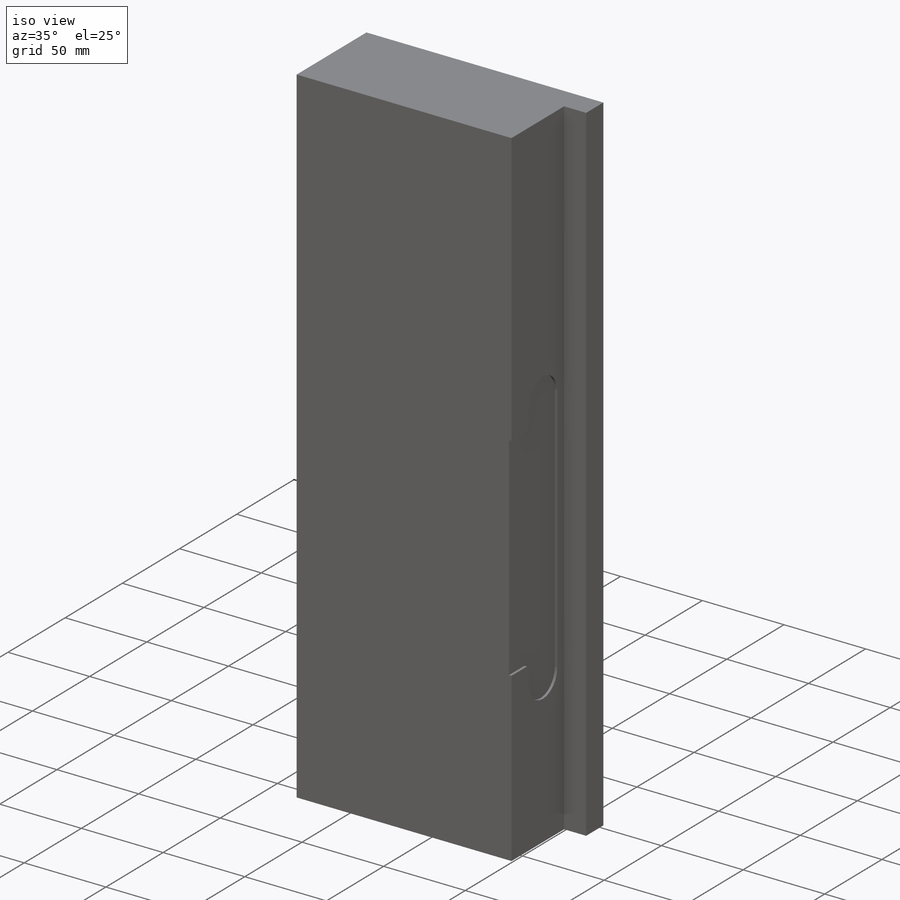
[diagram: iso view]
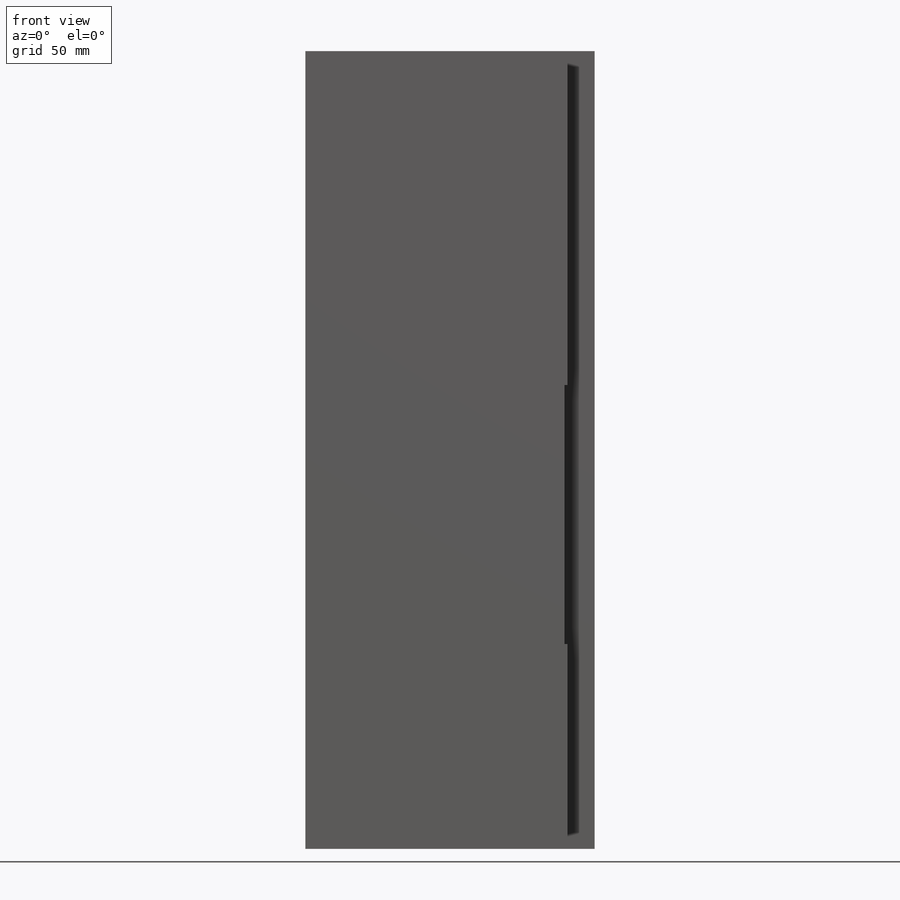
[diagram: front view]
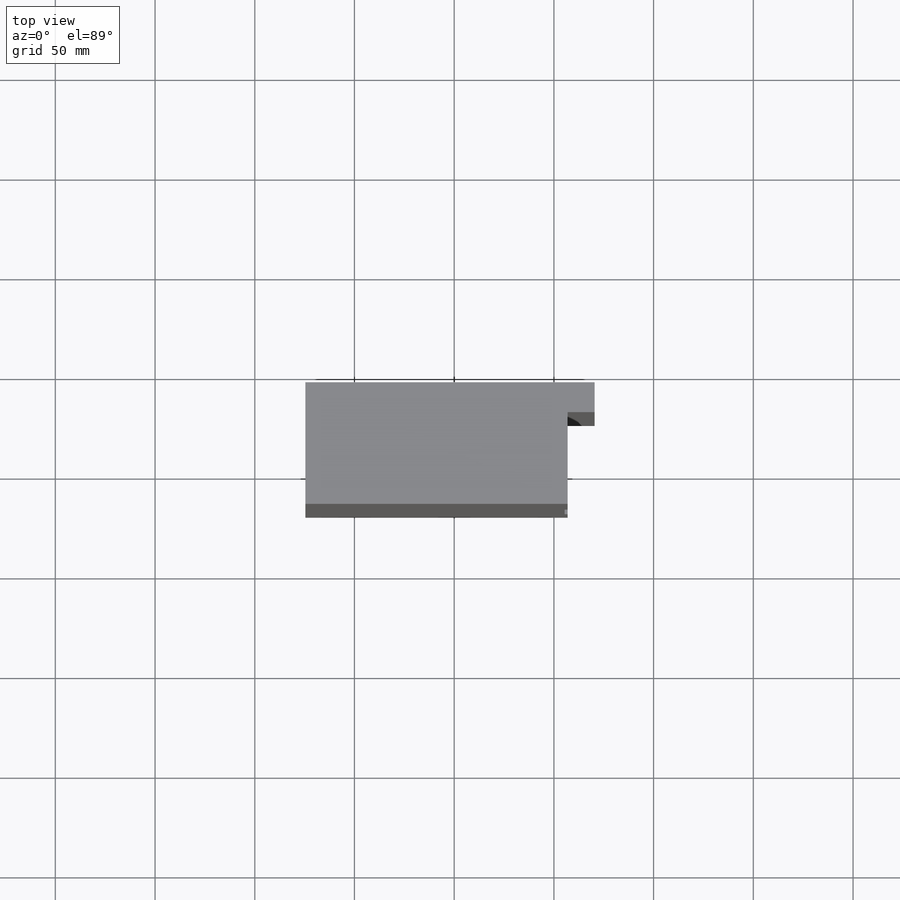
[diagram: top view]
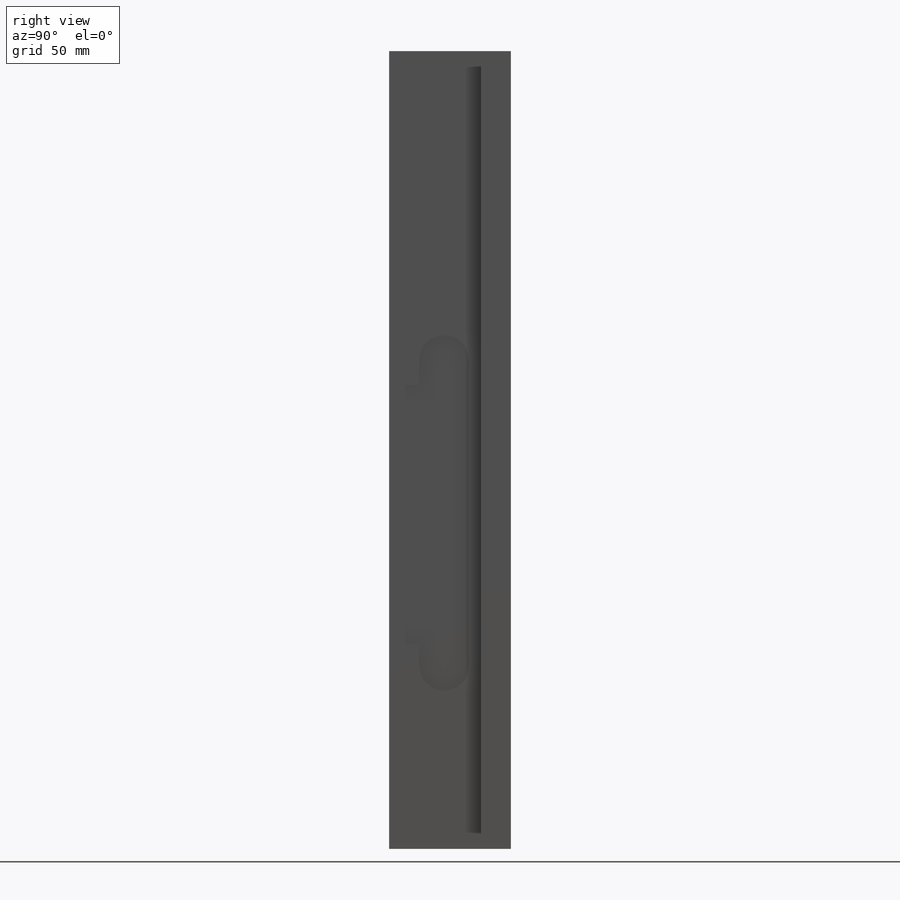
[diagram: right view]
SOLIDWORKS PART (.sldprt)
format: sldprt  version: not decoded by parser v0  size: 279,040 bytes
history: native  units: mm
features: sketch x5, plane x4, extrude x3, material x1, cut_extrude x1 (+14 scaffold rows collapsed)
feature tree (28):
  scaffold x14  (default folders/planes/origin — collapsed)
  material  "Matériau <non spécifié>"
  plane  "Plan de face"
  plane  "Plan de dessus"
  plane  "Plan de droite"
  sketch  "Esquisse2"  dims[D1=0.0mm D2=0.0mm]
  extrude  "Extrusion1"  [1 undecoded]
  sketch  "Esquisse3"
  extrude  "Extrusion2"  Depth=130mm
  sketch  "Esquisse4"  dims[D1=15.0mm]
  extrude  "Extrusion3"  Depth=145mm
  plane  "Plan1"  Offset=100mm
  sketch  "Esquisse6"  dims[D1=0.0mm D2=0.0mm D3=0.0mm D4=0.0mm D5=0.0mm D6=0.0mm]
  sketch  "Esquisse7"  dims[D1=0.0mm D2=0.0mm D3=0.0mm D4=0.0mm D5=0.0mm]
  cut_extrude  "Enlèv. mat.-Extru.1"  Depth=20mm
decode coverage: 7 of 9 modeling features carry decoded parameters
note: 1 parameter value undecoded
note: suppression state not decoded; provenance and decode notes live in map.json
